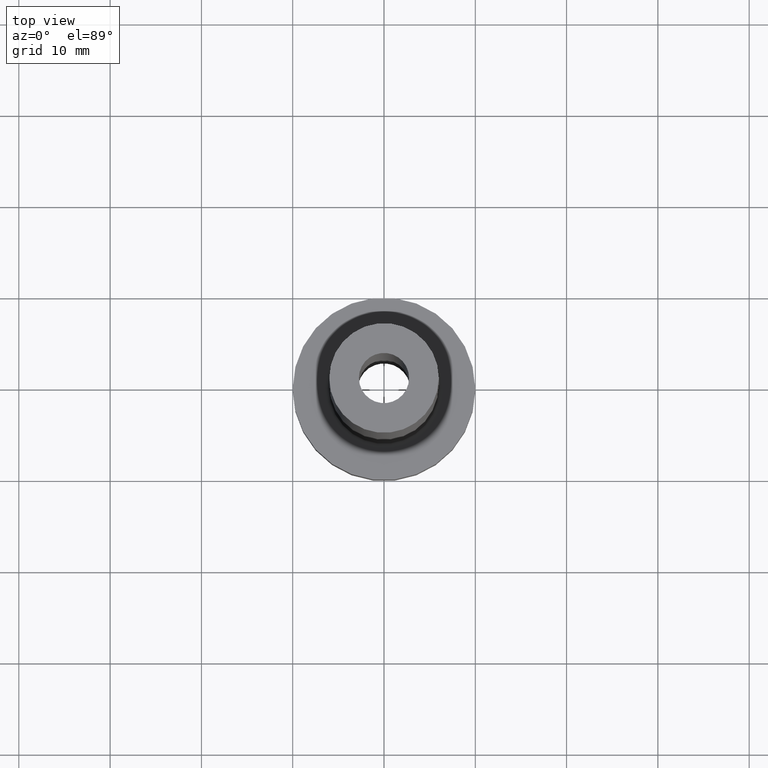
[diagram: clean part render]
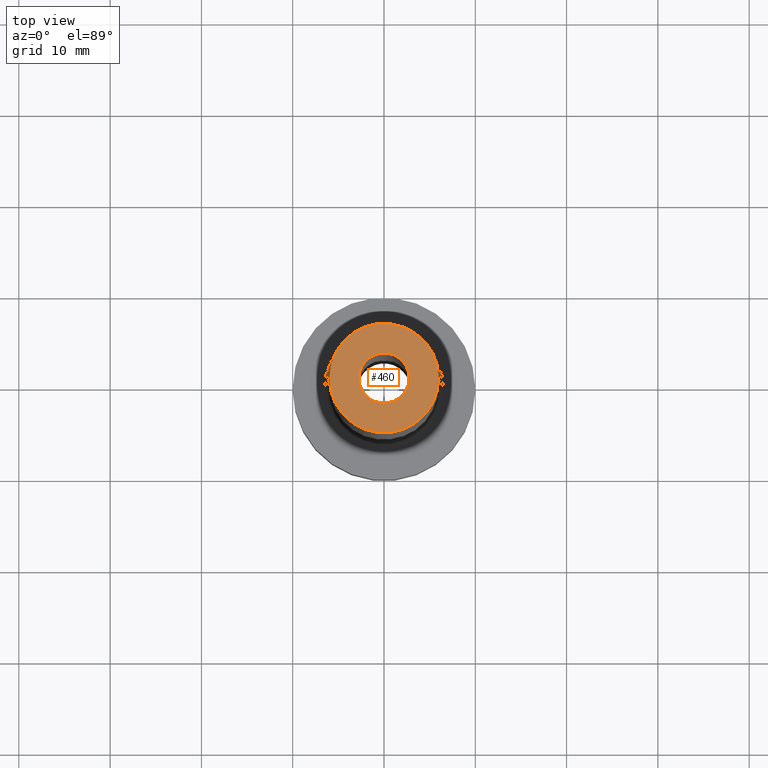
[diagram: same view with one face highlighted and labeled with its STEP entity id]
A machine part, top view. The second image highlights one B-rep face of the part: STEP entity #460.
In plain terms, the highlighted planar face has unit normal (0, 0, 1).
Its self-contained STEP definition (entity closure, byte-faithful):
#29 = VERTEX_POINT ( 'NONE', #449 ) ;
#31 = VERTEX_POINT ( 'NONE', #382 ) ;
#39 = PLANE ( 'NONE',  #421 ) ;
#50 = CARTESIAN_POINT ( 'NONE',  ( -2.750000000000000000, 0.000000000000000000, 75.00000000000001421 ) ) ;
#60 = DIRECTION ( 'NONE',  ( 1.000000000000000000, 0.000000000000000000, 0.000000000000000000 ) ) ;
#73 = VERTEX_POINT ( 'NONE', #50 ) ;
#76 = CARTESIAN_POINT ( 'NONE',  ( 0.000000000000000000, 0.000000000000000000, 75.00000000000001421 ) ) ;
#89 = EDGE_CURVE ( 'NONE', #73, #29, #283, .T. ) ;
#109 = EDGE_LOOP ( 'NONE', ( #304, #338 ) ) ;
#116 = CIRCLE ( 'NONE', #420, 6.000000000000000888 ) ;
#117 = DIRECTION ( 'NONE',  ( 0.000000000000000000, 0.000000000000000000, 1.000000000000000000 ) ) ;
#120 = DIRECTION ( 'NONE',  ( 1.000000000000000000, 0.000000000000000000, 0.000000000000000000 ) ) ;
#126 = DIRECTION ( 'NONE',  ( 0.000000000000000000, 0.000000000000000000, 1.000000000000000000 ) ) ;
#144 = AXIS2_PLACEMENT_3D ( 'NONE', #160, #209, #120 ) ;
#160 = CARTESIAN_POINT ( 'NONE',  ( 0.000000000000000000, 0.000000000000000000, 75.00000000000001421 ) ) ;
#161 = AXIS2_PLACEMENT_3D ( 'NONE', #316, #251, #349 ) ;
#167 = EDGE_LOOP ( 'NONE', ( #237, #381 ) ) ;
#169 = CIRCLE ( 'NONE', #144, 6.000000000000000888 ) ;
#193 = AXIS2_PLACEMENT_3D ( 'NONE', #76, #117, #363 ) ;
#205 = VERTEX_POINT ( 'NONE', #279 ) ;
#209 = DIRECTION ( 'NONE',  ( 0.000000000000000000, 0.000000000000000000, 1.000000000000000000 ) ) ;
#237 = ORIENTED_EDGE ( 'NONE', *, *, #89, .F. ) ;
#251 = DIRECTION ( 'NONE',  ( 0.000000000000000000, 0.000000000000000000, 1.000000000000000000 ) ) ;
#257 = DIRECTION ( 'NONE',  ( 0.000000000000000000, 0.000000000000000000, 1.000000000000000000 ) ) ;
#279 = CARTESIAN_POINT ( 'NONE',  ( -6.000000000000000888, 0.000000000000000000, 75.00000000000001421 ) ) ;
#281 = CARTESIAN_POINT ( 'NONE',  ( 0.000000000000000000, 0.000000000000000000, 75.00000000000001421 ) ) ;
#283 = CIRCLE ( 'NONE', #193, 2.750000000000000000 ) ;
#290 = CIRCLE ( 'NONE', #161, 2.750000000000000000 ) ;
#295 = FACE_BOUND ( 'NONE', #167, .T. ) ;
#304 = ORIENTED_EDGE ( 'NONE', *, *, #428, .T. ) ;
#316 = CARTESIAN_POINT ( 'NONE',  ( 0.000000000000000000, 0.000000000000000000, 75.00000000000001421 ) ) ;
#327 = CARTESIAN_POINT ( 'NONE',  ( 0.000000000000000000, 0.000000000000000000, 75.00000000000001421 ) ) ;
#338 = ORIENTED_EDGE ( 'NONE', *, *, #351, .T. ) ;
#349 = DIRECTION ( 'NONE',  ( 1.000000000000000000, 0.000000000000000000, 0.000000000000000000 ) ) ;
#351 = EDGE_CURVE ( 'NONE', #31, #205, #169, .T. ) ;
#361 = FACE_OUTER_BOUND ( 'NONE', #109, .T. ) ;
#363 = DIRECTION ( 'NONE',  ( 1.000000000000000000, 0.000000000000000000, 0.000000000000000000 ) ) ;
#381 = ORIENTED_EDGE ( 'NONE', *, *, #384, .F. ) ;
#382 = CARTESIAN_POINT ( 'NONE',  ( 6.000000000000000888, 7.347880794884120722E-16, 75.00000000000001421 ) ) ;
#384 = EDGE_CURVE ( 'NONE', #29, #73, #290, .T. ) ;
#393 = DIRECTION ( 'NONE',  ( 1.000000000000000000, 0.000000000000000000, -0.000000000000000000 ) ) ;
#420 = AXIS2_PLACEMENT_3D ( 'NONE', #281, #126, #60 ) ;
#421 = AXIS2_PLACEMENT_3D ( 'NONE', #327, #257, #393 ) ;
#428 = EDGE_CURVE ( 'NONE', #205, #31, #116, .T. ) ;
#449 = CARTESIAN_POINT ( 'NONE',  ( 2.750000000000000000, 3.367778697655220519E-16, 75.00000000000001421 ) ) ;
#460 = ADVANCED_FACE ( 'NONE', ( #295, #361 ), #39, .T. ) ;